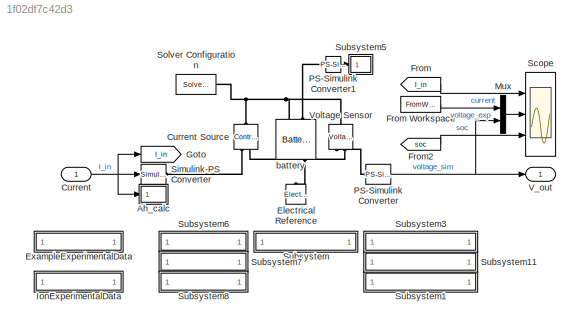
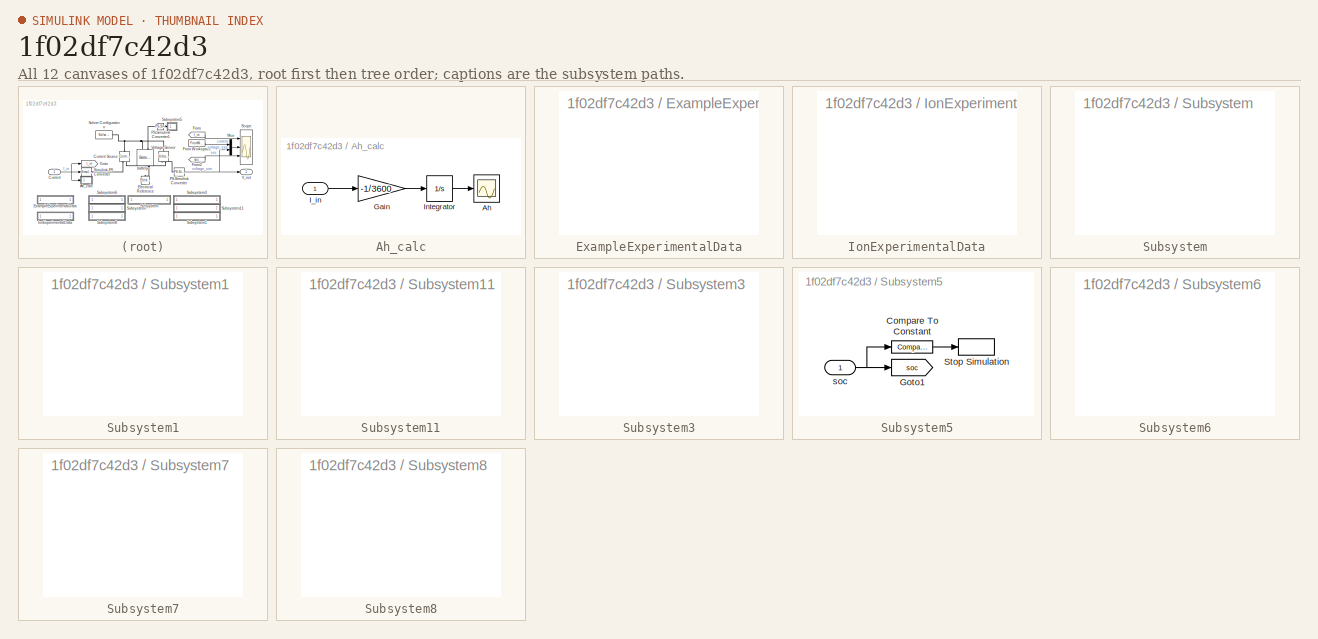
[diagram: thumbnail index - all 12 canvases of the model, root first then tree order]
MODEL slx_1f02df7c42d3
KIND model
CONFIG AbsTol = auto
CONFIG EnableMultiTasking = on
CONFIG FixedStep = auto
CONFIG MaxStep = 10
CONFIG MinStep = auto
CONFIG PostLoadFcn = synthData_ini;
CONFIG RelTol = 1e-3
CONFIG SampleTimeConstraint = Unconstrained
CONFIG Solver = ode15s
CONFIG SolverName = ode15s
CONFIG StartTime = 0
CONFIG StopTime = synthDataIon.t(end)
WORKSPACE source: mxarray member
WORKSPACE batteryParameterEstimation_spesession: sldodialogs.data.SessionData (value not decoded)
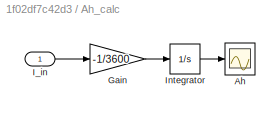
BLOCK [SubSystem] Ah_calc
  Ports = [1]
  RequestExecContextInheritance = off
BLOCK [Scope] Ah_calc/Ah 
  Floating = off
  NumInputPorts = 1
  Ports = [1]
  ScopeSpecificationString = Simulink.scopes.TimeScopeBlockCfg('CurrentConfiguration', extmgr.ConfigurationSet(extmgr.Configuration('Core','General UI',true),extmgr.Configuration('Core','Source UI',true),extmgr.Configuration('Sources','WiredSimulink',true,'DataLoggingVariableName','ScopeData1'),extmgr.Configuration('Visuals','Time Domain',true,'SerializedDisplays',{struct('MinYLimReal','-3.40344','MaxYLimReal','30.18497','YLa...<+1702ch>
BLOCK [Gain] Ah_calc/Gain
  Gain = -1/3600
BLOCK [Inport] Ah_calc/I_in
BLOCK [Integrator] Ah_calc/Integrator
  Ports = [1, 1]
BLOCK [Inport] Current
BLOCK [Reference] Current Source  REF=fl_lib/Electrical/Electrical Sources/Controlled Current
Source
  NameLocation = left
  Ports = [0, 0, 0, 0, 0, 1, 2]
  SourceBlock = fl_lib/Electrical/Electrical Sources/Controlled Current\nSource
  SourceProductBaseCode = SS
  SourceType = Controlled Current\nSource
BLOCK [Reference] Electrical Reference  REF=fl_lib/Electrical/Electrical Elements/Electrical Reference
  NameLocation = right
  Ports = [0, 0, 0, 0, 0, 1]
  SourceBlock = fl_lib/Electrical/Electrical Elements/Electrical Reference
  SourceProductBaseCode = SS
  SourceType = Electrical Reference
BLOCK [SubSystem] ExampleExperimentalData
  OpenFcn = figure\nsubplot(2,1,1)\nplot(synthData.t, synthData.I)\nylabel('current (A)')\nsubplot(2,1,2)\nplot(synthData.t, synthData.V)\nylabel('voltage (V)')\nxlabel('time (s)')\np = get_param('batteryParameterEstimation','FastRestart');\nswitch p \n    case 'on'\n    set_param('batteryParameterEstimation','FastRestart','off')\nend\n% estimExp = 1;
  Ports = []
  RequestExecContextInheritance = off
BLOCK [From] From
  GotoTag = I_in
BLOCK [FromWorkspace] From Workspace
  VariableName = [synthDataIon.t synthDataIon.V]
BLOCK [From] From2
  GotoTag = soc
  TagVisibility = global
BLOCK [Goto] Goto
  GotoTag = I_in
BLOCK [SubSystem] IonExperimentalData
  OpenFcn = figure\nsubplot(2,1,1)\nplot(synthDataIon.t, synthDataIon.I)\nylabel('current (A)')\nsubplot(2,1,2)\nplot(synthDataIon.t, synthDataIon.V)\nylabel('voltage (V)')\nxlabel('time (s)')\np = get_param('batteryParameterEstimation','FastRestart');\nswitch p \n    case 'on'\n    set_param('batteryParameterEstimation','FastRestart','off')\nend\n% estimExp = 1;
  Ports = []
  RequestExecContextInheritance = off
BLOCK [Mux] Mux
  DisplayOption = bar
  Inputs = 2
  Ports = [2, 1]
BLOCK [Reference] PS-Simulink Converter  REF=nesl_utility/PS-Simulink
Converter
  Ports = [0, 1, 0, 0, 0, 1]
  SourceBlock = nesl_utility/PS-Simulink\nConverter
  SourceProductBaseCode = SS
  SourceType = PS-Simulink\nConverter
BLOCK [Reference] PS-Simulink Converter1  REF=nesl_utility/PS-Simulink
Converter
  Ports = [0, 1, 0, 0, 0, 1]
  SourceBlock = nesl_utility/PS-Simulink\nConverter
  SourceProductBaseCode = SS
  SourceType = PS-Simulink\nConverter
BLOCK [Scope] Scope
  Floating = off
  NumInputPorts = 3
  Ports = [3]
  ScopeSpecificationString = Simulink.scopes.TimeScopeBlockCfg('CurrentConfiguration', extmgr.ConfigurationSet(extmgr.Configuration('Core','General UI',true,'FigureColor',[1 1 1]),extmgr.Configuration('Core','Source UI',true),extmgr.Configuration('Sources','WiredSimulink',true,'DataLoggingSaveFormat','StructureWithTime','DataLoggingDecimation','1','DataLoggingDecimateData',true),extmgr.Configuration('Visuals','Time Domain',tr...<+4866ch>
BLOCK [Reference] Simulink-PS Converter  REF=nesl_utility/Simulink-PS
Converter
  Ports = [1, 0, 0, 0, 0, 0, 1]
  SourceBlock = nesl_utility/Simulink-PS\nConverter
  SourceProductBaseCode = SS
  SourceType = Simulink-PS\nConverter
BLOCK [Reference] Solver Configuration  REF=nesl_utility/Solver
Configuration
  Ports = [0, 0, 0, 0, 0, 0, 1]
  SourceBlock = nesl_utility/Solver\nConfiguration
  SourceProductBaseCode = SS
  SourceType = Solver\nConfiguration
BLOCK [SubSystem] Subsystem
  OpenFcn = synthData_config;
  Ports = []
  RequestExecContextInheritance = off
BLOCK [SubSystem] Subsystem1
  OpenFcn = load('synthDataFinal3RC.mat')
  Ports = []
  RequestExecContextInheritance = off
BLOCK [SubSystem] Subsystem11
  OpenFcn = load('synthDataFinal1RC.mat')
  Ports = []
  RequestExecContextInheritance = off
BLOCK [SubSystem] Subsystem3
  OpenFcn = synthData_ini
  Ports = []
  RequestExecContextInheritance = off
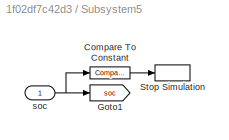
BLOCK [SubSystem] Subsystem5
  Ports = [1]
  RequestExecContextInheritance = off
BLOCK [Reference] Subsystem5/Compare To Constant  REF=simulink/Logic and Bit
Operations/Compare
To Constant
  Ports = [1, 1]
  SourceBlock = simulink/Logic and Bit\nOperations/Compare\nTo Constant
  SourceProductBaseCode = SL
  SourceType = Compare To Constant
BLOCK [Goto] Subsystem5/Goto1
  GotoTag = soc
  TagVisibility = global
BLOCK [Stop] Subsystem5/Stop Simulation
BLOCK [Inport] Subsystem5/soc
BLOCK [SubSystem] Subsystem6
  OpenFcn = p = get_param('batteryParameterEstimation','FastRestart');\nswitch p \n    case 'on'\n    set_param('batteryParameterEstimation','FastRestart','off')\nend\nnumTau = 1;\nsynthData_config;
  Ports = []
  RequestExecContextInheritance = off
BLOCK [SubSystem] Subsystem7
  OpenFcn = p = get_param('batteryParameterEstimation','FastRestart');\nswitch p \n    case 'on'\n    set_param('batteryParameterEstimation','FastRestart','off')\nend\nnumTau = 2;\nsynthData_config;
  Ports = []
  RequestExecContextInheritance = off
BLOCK [SubSystem] Subsystem8
  OpenFcn = p = get_param('batteryParameterEstimation','FastRestart');\nswitch p \n    case 'on'\n    set_param('batteryParameterEstimation','FastRestart','off')\nend\nnumTau = 3;\nsynthData_config;
  Ports = []
  RequestExecContextInheritance = off
BLOCK [Outport] V_out
  VectorParamsAs1DForOutWhenUnconnected = off
BLOCK [Reference] Voltage Sensor  REF=fl_lib/Electrical/Electrical Sensors/Voltage Sensor
  NameLocation = right
  Ports = [0, 0, 0, 0, 0, 1, 2]
  SourceBlock = fl_lib/Electrical/Electrical Sensors/Voltage Sensor
  SourceProductBaseCode = SS
  SourceType = Voltage Sensor
BLOCK [Reference] battery  REF=ee_lib/Sources/Battery
(Table-Based)
  NameLocation = left
  Ports = [0, 0, 0, 0, 0, 2, 1]
  SourceBlock = ee_lib/Sources/Battery\n(Table-Based)
  SourceProductBaseCode = PS
  SourceType = Battery\n(Table-Based)
LINE Ah_calc/Gain:1 -> Ah_calc/Integrator:1
LINE Ah_calc/I_in:1 -> Ah_calc/Gain:1
LINE Ah_calc/Integrator:1 -> Ah_calc/Ah :1
NET Current:1 -> Ah_calc:1, Goto:1, Simulink-PS Converter:1
LINE From Workspace:1 -> Mux:1
LINE From2:1 -> Scope:3
LINE From:1 -> Scope:1
LINE Mux:1 -> Scope:2
LINE PS-Simulink Converter1:1 -> Subsystem5:1
NET PS-Simulink Converter:1 -> Mux:2, V_out:1
LINE Subsystem5/Compare To Constant:1 -> Subsystem5/Stop Simulation:1
NET Subsystem5/soc:1 -> Subsystem5/Compare To Constant:1, Subsystem5/Goto1:1
PNET net1: Current Source:LConn1 -- Solver Configuration:RConn1 -- Voltage Sensor:LConn1 -- battery:LConn1
PLINE Current Source:RConn1 -- Simulink-PS Converter:RConn1
PNET net2: Current Source:RConn2 -- Electrical Reference:LConn1 -- Voltage Sensor:RConn2 -- battery:RConn1
PLINE PS-Simulink Converter1:LConn1 -- battery:LConn2
PLINE PS-Simulink Converter:LConn1 -- Voltage Sensor:RConn1
note: NET lines group one-source signal fan-out (src -> all destinations, sorted); 1:1 wires keep LINE; PNET lines group multi-terminal physical nets as a canonical sorted terminal list (undirected conserving connections); 2-terminal nets keep the pairwise PLINE form
